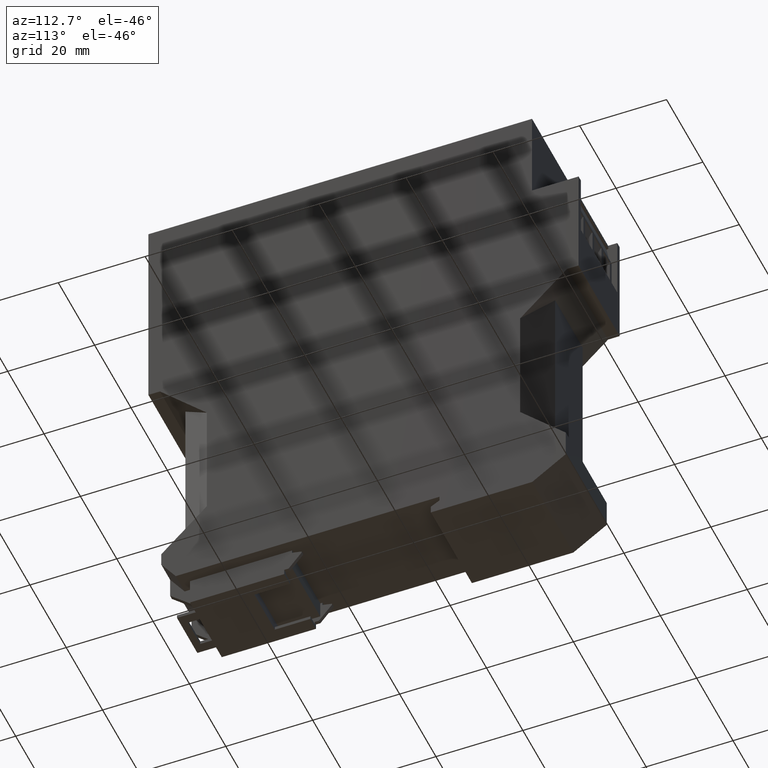
[diagram: clean part render]
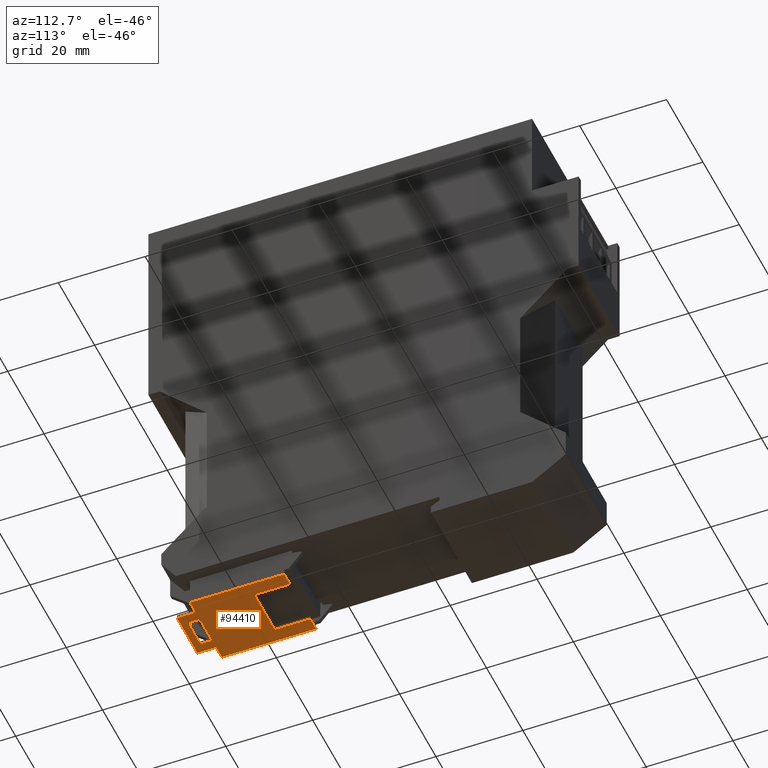
[diagram: same view with one face highlighted and labeled with its STEP entity id]
A machine part, auxiliary view. The second image highlights one B-rep face of the part: STEP entity #94410.
In plain terms, the highlighted planar face has unit normal (-0, -0, -1).
Its self-contained STEP definition (entity closure, byte-faithful):
#9540=CARTESIAN_POINT('',(-58.5000000000017,-6.49999999999915,
5.70000000000001));
#9550=VERTEX_POINT('',#9540);
#9580=CARTESIAN_POINT('',(-58.5000000000017,-6.49999999999914,
2.54999999999998));
#9590=DIRECTION('',(0.,0.,-1.));
#9600=VECTOR('',#9590,1.);
#9610=LINE('',#9580,#9600);
#9620=CARTESIAN_POINT('',(-58.5000000000017,-6.49999999999915,
2.54999999999998));
#9630=VERTEX_POINT('',#9620);
#9640=EDGE_CURVE('',#9550,#9630,#9610,.T.);
#9910=CARTESIAN_POINT('',(-62.8000000000017,-6.49999999999903,
5.70000000000001));
#9920=VERTEX_POINT('',#9910);
#9950=CARTESIAN_POINT('',(-17.5028579627089,-6.49999999999914,
5.70000000000001));
#9960=DIRECTION('',(1.,0.,0.));
#9970=VECTOR('',#9960,1.);
#9980=LINE('',#9950,#9970);
#9990=EDGE_CURVE('',#9920,#9550,#9980,.T.);
#11820=CARTESIAN_POINT('',(-17.5000000000017,-6.50000000000032,
2.54999999999998));
#11830=DIRECTION('',(1.,-2.8421709430404E-14,-0.));
#11840=VECTOR('',#11830,1.);
#11850=LINE('',#11820,#11840);
#11860=CARTESIAN_POINT('',(-36.8000000000018,-6.49999999999977,
2.54999999999998));
#11870=VERTEX_POINT('',#11860);
#11880=EDGE_CURVE('',#9630,#11870,#11850,.T.);
#12130=CARTESIAN_POINT('',(-36.8000000000018,-6.49999999999977,11.35));
#12140=DIRECTION('',(0.,0.,1.));
#12150=VECTOR('',#12140,1.);
#12160=LINE('',#12130,#12150);
#12170=CARTESIAN_POINT('',(-36.8000000000018,-6.49999999999977,
5.70000000000001));
#12180=VERTEX_POINT('',#12170);
#12190=EDGE_CURVE('',#11870,#12180,#12160,.T.);
#12970=CARTESIAN_POINT('',(-62.8000000000017,-6.49999999999903,
16.9000000000001));
#12980=VERTEX_POINT('',#12970);
#13010=CARTESIAN_POINT('',(-62.8000000000017,-6.49999999999914,11.55));
#13020=DIRECTION('',(0.,0.,1.));
#13030=VECTOR('',#13020,1.);
#13040=LINE('',#13010,#13030);
#13050=EDGE_CURVE('',#9920,#12980,#13040,.T.);
#13440=CARTESIAN_POINT('',(-17.5000000000017,-6.50000000000032,
5.70000000000001));
#13450=DIRECTION('',(1.,-2.8421709430404E-14,-0.));
#13460=VECTOR('',#13450,1.);
#13470=LINE('',#13440,#13460);
#13480=CARTESIAN_POINT('',(-44.9780959244096,-6.49999999999953,
5.70000000000001));
#13490=VERTEX_POINT('',#13480);
#13500=EDGE_CURVE('',#13490,#12180,#13470,.T.);
#13850=CARTESIAN_POINT('',(-58.5000000000017,-6.49999999999915,
16.8999999999999));
#13860=VERTEX_POINT('',#13850);
#14260=CARTESIAN_POINT('',(-58.5000000000018,-6.49999999999915,20.05));
#14270=VERTEX_POINT('',#14260);
#14300=CARTESIAN_POINT('',(-58.5000000000017,-6.49999999999914,
2.54999999999998));
#14310=DIRECTION('',(0.,0.,-1.));
#14320=VECTOR('',#14310,1.);
#14330=LINE('',#14300,#14320);
#14340=EDGE_CURVE('',#14270,#13860,#14330,.T.);
#14550=CARTESIAN_POINT('',(-36.8000000000018,-6.49999999999977,20.05));
#14560=VERTEX_POINT('',#14550);
#14610=CARTESIAN_POINT('',(-17.5000000000017,-6.50000000000032,20.05));
#14620=DIRECTION('',(-1.,2.8421709430404E-14,0.));
#14630=VECTOR('',#14620,1.);
#14640=LINE('',#14610,#14630);
#14650=EDGE_CURVE('',#14560,#14270,#14640,.T.);
#16240=CARTESIAN_POINT('',(-36.8000000000018,-6.49999999999977,
16.8999999999999));
#16250=VERTEX_POINT('',#16240);
#16280=CARTESIAN_POINT('',(-36.8000000000018,-6.49999999999977,11.35));
#16290=DIRECTION('',(0.,0.,1.));
#16300=VECTOR('',#16290,1.);
#16310=LINE('',#16280,#16300);
#16320=EDGE_CURVE('',#16250,#14560,#16310,.T.);
#16610=CARTESIAN_POINT('',(-17.5028579627082,-6.49999999999914,
16.8999999999979));
#16620=DIRECTION('',(-1.,0.,4.94E-14));
#16630=VECTOR('',#16620,1.);
#16640=LINE('',#16610,#16630);
#16650=EDGE_CURVE('',#13860,#12980,#16640,.T.);
#16960=CARTESIAN_POINT('',(-44.9780959244096,-6.49999999999953,0.));
#16970=DIRECTION('',(0.,0.,-1.));
#16980=VECTOR('',#16970,1.);
#16990=LINE('',#16960,#16980);
#17000=CARTESIAN_POINT('',(-44.9780959244096,-6.49999999999953,
16.8999999999999));
#17010=VERTEX_POINT('',#17000);
#17020=EDGE_CURVE('',#17010,#13490,#16990,.T.);
#93830=CARTESIAN_POINT('',(-62.8000000000019,-6.49999999999903,
2.55000000000001));
#93840=DIRECTION('',(-2.8421709430404E-14,-1.,-0.));
#93850=DIRECTION('',(0.,0.,-1.));
#93860=AXIS2_PLACEMENT_3D('',#93830,#93840,#93850);
#93870=PLANE('',#93860);
#93880=CARTESIAN_POINT('',(-17.5028579627089,-6.49999999999914,14.7));
#93890=DIRECTION('',(1.,0.,0.));
#93900=VECTOR('',#93890,1.);
#93910=LINE('',#93880,#93900);
#93920=CARTESIAN_POINT('',(-61.2000000000018,-6.49999999999908,14.7));
#93930=VERTEX_POINT('',#93920);
#93940=CARTESIAN_POINT('',(-58.5000000000017,-6.49999999999915,14.7));
#93950=VERTEX_POINT('',#93940);
#93960=EDGE_CURVE('',#93930,#93950,#93910,.T.);
#93970=ORIENTED_EDGE('',*,*,#93960,.T.);
#93980=CARTESIAN_POINT('',(-61.2000000000018,-6.49999999999914,
2.54999999999998));
#93990=DIRECTION('',(0.,0.,1.));
#94000=VECTOR('',#93990,1.);
#94010=LINE('',#93980,#94000);
#94020=CARTESIAN_POINT('',(-61.2000000000018,-6.49999999999908,
7.89999999999989));
#94030=VERTEX_POINT('',#94020);
#94040=EDGE_CURVE('',#94030,#93930,#94010,.T.);
#94050=ORIENTED_EDGE('',*,*,#94040,.T.);
#94060=CARTESIAN_POINT('',(-17.5028579627089,-6.49999999999914,
7.89999999999989));
#94070=DIRECTION('',(-1.,0.,0.));
#94080=VECTOR('',#94070,1.);
#94090=LINE('',#94060,#94080);
#94100=CARTESIAN_POINT('',(-58.5000000000017,-6.49999999999915,
7.89999999999989));
#94110=VERTEX_POINT('',#94100);
#94120=EDGE_CURVE('',#94110,#94030,#94090,.T.);
#94130=ORIENTED_EDGE('',*,*,#94120,.T.);
#94140=CARTESIAN_POINT('',(-58.5000000000017,-6.49999999999914,
2.54999999999998));
#94150=DIRECTION('',(0.,0.,-1.));
#94160=VECTOR('',#94150,1.);
#94170=LINE('',#94140,#94160);
#94180=EDGE_CURVE('',#93950,#94110,#94170,.T.);
#94190=ORIENTED_EDGE('',*,*,#94180,.T.);
#94200=EDGE_LOOP('',(#94190,#94130,#94050,#93970));
#94210=FACE_BOUND('',#94200,.T.);
#94220=ORIENTED_EDGE('',*,*,#17020,.F.);
#94230=ORIENTED_EDGE('',*,*,#13500,.F.);
#94240=ORIENTED_EDGE('',*,*,#12190,.T.);
#94250=ORIENTED_EDGE('',*,*,#11880,.T.);
#94260=ORIENTED_EDGE('',*,*,#9640,.T.);
#94270=ORIENTED_EDGE('',*,*,#9990,.T.);
#94280=ORIENTED_EDGE('',*,*,#13050,.F.);
#94290=ORIENTED_EDGE('',*,*,#16650,.T.);
#94300=ORIENTED_EDGE('',*,*,#14340,.T.);
#94310=ORIENTED_EDGE('',*,*,#14650,.T.);
#94320=ORIENTED_EDGE('',*,*,#16320,.T.);
#94330=CARTESIAN_POINT('',(-17.5028579627089,-6.49999999999914,
16.8999999999999));
#94340=DIRECTION('',(1.,0.,0.));
#94350=VECTOR('',#94340,1.);
#94360=LINE('',#94330,#94350);
#94370=EDGE_CURVE('',#17010,#16250,#94360,.T.);
#94380=ORIENTED_EDGE('',*,*,#94370,.T.);
#94390=EDGE_LOOP('',(#94380,#94320,#94310,#94300,#94290,#94280,#94270,
#94260,#94250,#94240,#94230,#94220));
#94400=FACE_OUTER_BOUND('',#94390,.T.);
#94410=ADVANCED_FACE('',(#94210,#94400),#93870,.T.);